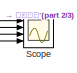
[diagram: root canvas - part 1/3, top left region]
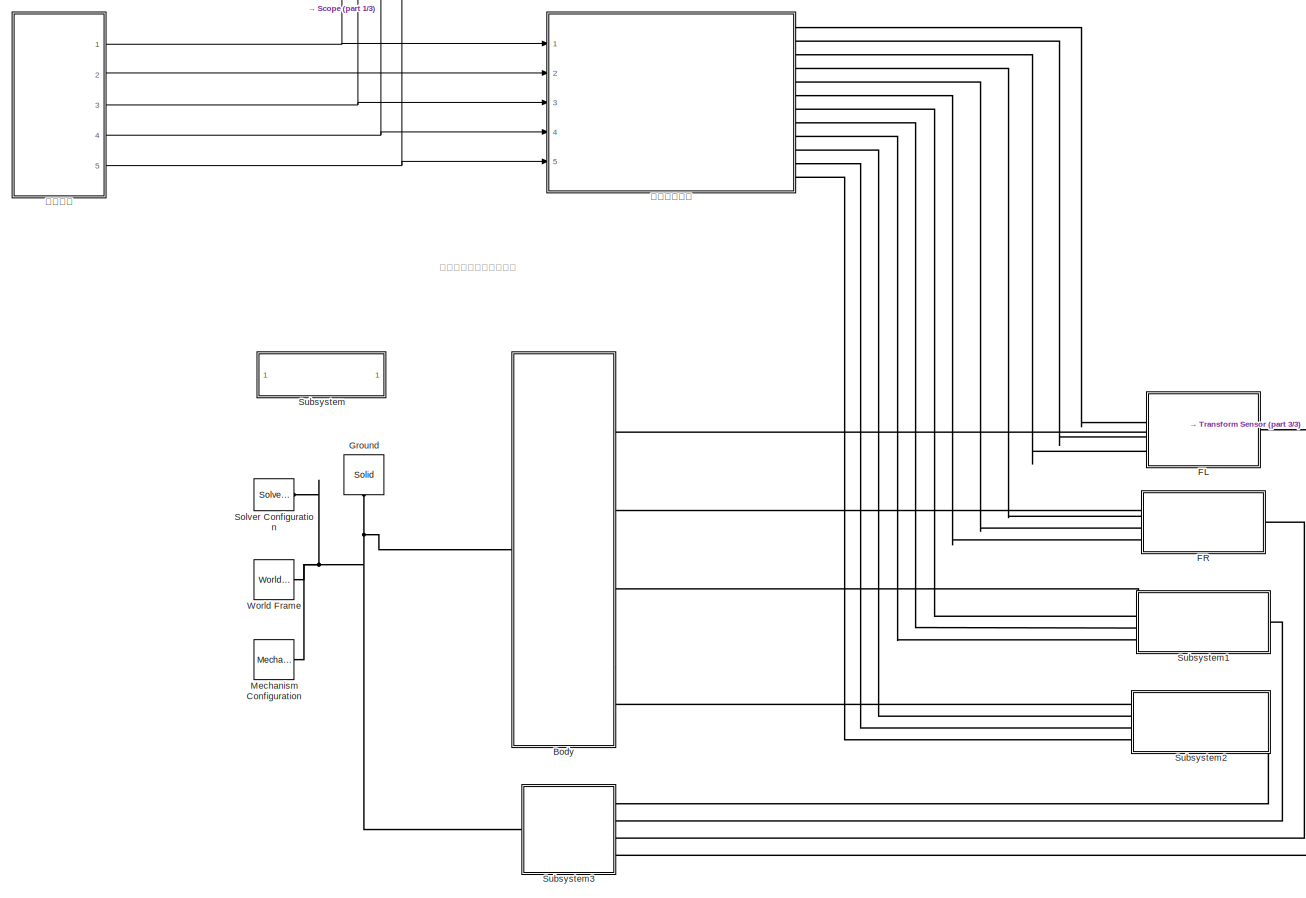
[diagram: root canvas - part 2/3, most of the canvas]
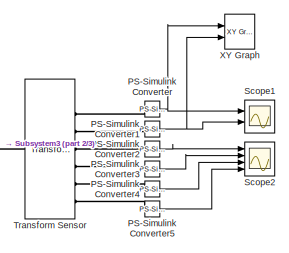
[diagram: root canvas - part 3/3, middle right region]
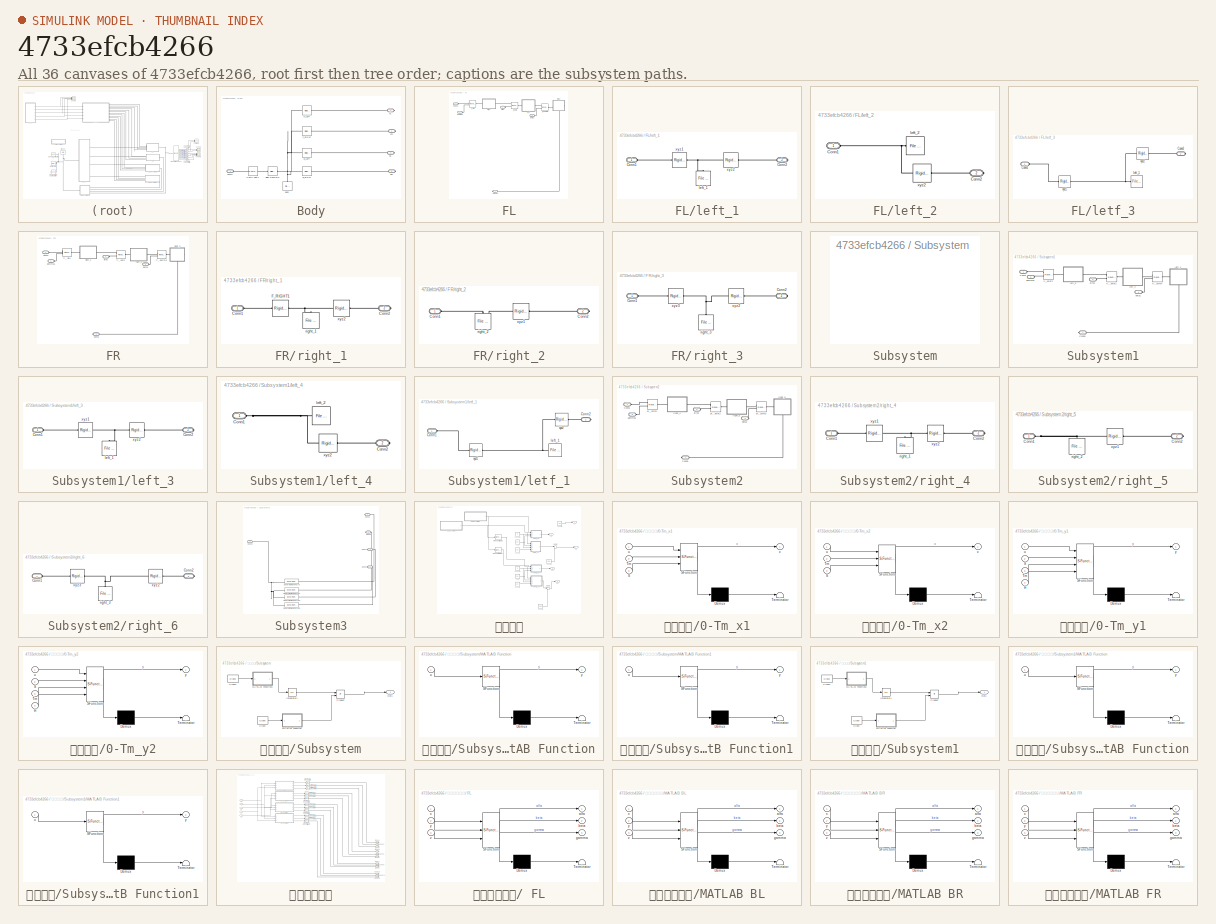
[diagram: thumbnail index - all 36 canvases of the model, root first then tree order]
MODEL slx_4733efcb4266
KIND model
CONFIG AbsTol = auto
CONFIG EnableMultiTasking = on
CONFIG FixedStep = auto
CONFIG MaxStep = auto
CONFIG MinStep = auto
CONFIG RelTol = 1e-3
CONFIG SampleTimeConstraint = Unconstrained
CONFIG Solver = VariableStepAuto
CONFIG SolverName = VariableStepAuto
CONFIG StartTime = 0.0
CONFIG StopTime = 10
BLOCK [SubSystem] Body
  Ports = [0, 0, 0, 0, 0, 1, 4]
  RequestExecContextInheritance = off
BLOCK [Reference] Body/6-DOF Joint1  REF=sm_lib/Joints/6-DOF Joint
  Ports = [0, 0, 0, 0, 0, 1, 1]
  SourceBlock = sm_lib/Joints/6-DOF Joint
  SourceProductBaseCode = MS
  SourceProductName = Simscape Multibody
  SourceType = 6-DOF Joint
BLOCK [PMIOPort] Body/BL
  Port = 3
  Side = Right
BLOCK [PMIOPort] Body/BR
  Port = 5
  Side = Right
BLOCK [Reference] Body/B_LEFT  REF=sm_lib/Frames and
Transforms/Rigid
Transform
  Ports = [0, 0, 0, 0, 0, 1, 1]
  SourceBlock = sm_lib/Frames and\nTransforms/Rigid\nTransform
  SourceProductBaseCode = MS
  SourceProductName = Simscape Multibody
  SourceType = Rigid\nTransform
BLOCK [Reference] Body/B_RIGHT  REF=sm_lib/Frames and
Transforms/Rigid
Transform
  Ports = [0, 0, 0, 0, 0, 1, 1]
  SourceBlock = sm_lib/Frames and\nTransforms/Rigid\nTransform
  SourceProductBaseCode = MS
  SourceProductName = Simscape Multibody
  SourceType = Rigid\nTransform
BLOCK [Reference] Body/Body  REF=sm_lib/Body Elements/File Solid
  Ports = [0, 0, 0, 0, 0, 0, 1]
  SourceBlock = sm_lib/Body Elements/File Solid
  SourceProductBaseCode = MS
  SourceProductName = Simscape Multibody
  SourceType = File Solid
BLOCK [PMIOPort] Body/Conn4
  Port = 4
  Side = Left
BLOCK [PMIOPort] Body/FL
  Side = Right
BLOCK [PMIOPort] Body/FR
  Port = 2
  Side = Right
BLOCK [Reference] Body/F_LEFT  REF=sm_lib/Frames and
Transforms/Rigid
Transform
  Ports = [0, 0, 0, 0, 0, 1, 1]
  SourceBlock = sm_lib/Frames and\nTransforms/Rigid\nTransform
  SourceProductBaseCode = MS
  SourceProductName = Simscape Multibody
  SourceType = Rigid\nTransform
BLOCK [Reference] Body/F_RIGHT  REF=sm_lib/Frames and
Transforms/Rigid
Transform
  Ports = [0, 0, 0, 0, 0, 1, 1]
  SourceBlock = sm_lib/Frames and\nTransforms/Rigid\nTransform
  SourceProductBaseCode = MS
  SourceProductName = Simscape Multibody
  SourceType = Rigid\nTransform
BLOCK [Reference] Body/Rigid Transform  REF=sm_lib/Frames and
Transforms/Rigid
Transform
  Ports = [0, 0, 0, 0, 0, 1, 1]
  SourceBlock = sm_lib/Frames and\nTransforms/Rigid\nTransform
  SourceProductBaseCode = MS
  SourceProductName = Simscape Multibody
  SourceType = Rigid\nTransform
BLOCK [SubSystem] FL
  Ports = [0, 0, 0, 0, 0, 4, 1]
  RequestExecContextInheritance = off
BLOCK [PMIOPort] FL/Conn1
  Side = Left
BLOCK [PMIOPort] FL/Conn5
  Port = 2
  Side = Right
BLOCK [PMIOPort] FL/alfa1
  Port = 3
  Side = Left
BLOCK [PMIOPort] FL/beta1
  Port = 4
  Side = Left
BLOCK [Reference] FL/fl_ beta  REF=sm_lib/Joints/Revolute Joint
  Ports = [0, 0, 0, 0, 0, 2, 1]
  SourceBlock = sm_lib/Joints/Revolute Joint
  SourceProductBaseCode = MS
  SourceProductName = Simscape Multibody
  SourceType = Revolute Joint
BLOCK [Reference] FL/fl_ gamma  REF=sm_lib/Joints/Revolute Joint
  Ports = [0, 0, 0, 0, 0, 2, 1]
  SourceBlock = sm_lib/Joints/Revolute Joint
  SourceProductBaseCode = MS
  SourceProductName = Simscape Multibody
  SourceType = Revolute Joint
BLOCK [Reference] FL/fl_alfa  REF=sm_lib/Joints/Revolute Joint
  Ports = [0, 0, 0, 0, 0, 2, 1]
  SourceBlock = sm_lib/Joints/Revolute Joint
  SourceProductBaseCode = MS
  SourceProductName = Simscape Multibody
  SourceType = Revolute Joint
BLOCK [PMIOPort] FL/gamma1
  Port = 5
  Side = Left
BLOCK [SubSystem] FL/left_1
  Ports = [0, 0, 0, 0, 0, 1, 1]
  RequestExecContextInheritance = off
BLOCK [PMIOPort] FL/left_1/Conn1
  Side = Left
BLOCK [PMIOPort] FL/left_1/Conn2
  Port = 2
  Side = Right
BLOCK [Reference] FL/left_1/left_1  REF=sm_lib/Body Elements/File Solid
  Ports = [0, 0, 0, 0, 0, 0, 1]
  SourceBlock = sm_lib/Body Elements/File Solid
  SourceProductBaseCode = MS
  SourceProductName = Simscape Multibody
  SourceType = File Solid
BLOCK [Reference] FL/left_1/xyz1  REF=sm_lib/Frames and
Transforms/Rigid
Transform
  Ports = [0, 0, 0, 0, 0, 1, 1]
  SourceBlock = sm_lib/Frames and\nTransforms/Rigid\nTransform
  SourceProductBaseCode = MS
  SourceProductName = Simscape Multibody
  SourceType = Rigid\nTransform
BLOCK [Reference] FL/left_1/xyz2  REF=sm_lib/Frames and
Transforms/Rigid
Transform
  Ports = [0, 0, 0, 0, 0, 1, 1]
  SourceBlock = sm_lib/Frames and\nTransforms/Rigid\nTransform
  SourceProductBaseCode = MS
  SourceProductName = Simscape Multibody
  SourceType = Rigid\nTransform
BLOCK [SubSystem] FL/left_2
  Ports = [0, 0, 0, 0, 0, 1, 1]
  RequestExecContextInheritance = off
BLOCK [PMIOPort] FL/left_2/Conn1
  Side = Left
BLOCK [PMIOPort] FL/left_2/Conn2
  Port = 2
  Side = Right
BLOCK [Reference] FL/left_2/left_2  REF=sm_lib/Body Elements/File Solid
  Ports = [0, 0, 0, 0, 0, 0, 1]
  SourceBlock = sm_lib/Body Elements/File Solid
  SourceProductBaseCode = MS
  SourceProductName = Simscape Multibody
  SourceType = File Solid
BLOCK [Reference] FL/left_2/xyz2  REF=sm_lib/Frames and
Transforms/Rigid
Transform
  Ports = [0, 0, 0, 0, 0, 1, 1]
  SourceBlock = sm_lib/Frames and\nTransforms/Rigid\nTransform
  SourceProductBaseCode = MS
  SourceProductName = Simscape Multibody
  SourceType = Rigid\nTransform
BLOCK [SubSystem] FL/letf_3
  Ports = [0, 0, 0, 0, 0, 1, 1]
  RequestExecContextInheritance = off
BLOCK [PMIOPort] FL/letf_3/Conn1
  Side = Left
BLOCK [PMIOPort] FL/letf_3/Conn2
  Port = 2
  Side = Right
BLOCK [Reference] FL/letf_3/left_1  REF=sm_lib/Body Elements/File Solid
  Ports = [0, 0, 0, 0, 0, 0, 1]
  SourceBlock = sm_lib/Body Elements/File Solid
  SourceProductBaseCode = MS
  SourceProductName = Simscape Multibody
  SourceType = File Solid
BLOCK [Reference] FL/letf_3/xyz1  REF=sm_lib/Frames and
Transforms/Rigid
Transform
  Ports = [0, 0, 0, 0, 0, 1, 1]
  SourceBlock = sm_lib/Frames and\nTransforms/Rigid\nTransform
  SourceProductBaseCode = MS
  SourceProductName = Simscape Multibody
  SourceType = Rigid\nTransform
BLOCK [Reference] FL/letf_3/xyz2  REF=sm_lib/Frames and
Transforms/Rigid
Transform
  Ports = [0, 0, 0, 0, 0, 1, 1]
  SourceBlock = sm_lib/Frames and\nTransforms/Rigid\nTransform
  SourceProductBaseCode = MS
  SourceProductName = Simscape Multibody
  SourceType = Rigid\nTransform
BLOCK [SubSystem] FR
  Ports = [0, 0, 0, 0, 0, 4, 1]
  RequestExecContextInheritance = off
BLOCK [PMIOPort] FR/Conn1
  Side = Left
BLOCK [PMIOPort] FR/Conn5
  Port = 2
  Side = Right
BLOCK [PMIOPort] FR/alfa1
  Port = 3
  Side = Left
BLOCK [PMIOPort] FR/beta1
  Port = 4
  Side = Left
BLOCK [Reference] FR/fr_ alfa  REF=sm_lib/Joints/Revolute Joint
  Ports = [0, 0, 0, 0, 0, 2, 1]
  SourceBlock = sm_lib/Joints/Revolute Joint
  SourceProductBaseCode = MS
  SourceProductName = Simscape Multibody
  SourceType = Revolute Joint
BLOCK [Reference] FR/fr_ beta  REF=sm_lib/Joints/Revolute Joint
  Ports = [0, 0, 0, 0, 0, 2, 1]
  SourceBlock = sm_lib/Joints/Revolute Joint
  SourceProductBaseCode = MS
  SourceProductName = Simscape Multibody
  SourceType = Revolute Joint
BLOCK [Reference] FR/fr_ gamma  REF=sm_lib/Joints/Revolute Joint
  Ports = [0, 0, 0, 0, 0, 2, 1]
  SourceBlock = sm_lib/Joints/Revolute Joint
  SourceProductBaseCode = MS
  SourceProductName = Simscape Multibody
  SourceType = Revolute Joint
BLOCK [PMIOPort] FR/gamma1
  Port = 5
  Side = Left
BLOCK [SubSystem] FR/right_1
  Ports = [0, 0, 0, 0, 0, 1, 1]
  RequestExecContextInheritance = off
BLOCK [PMIOPort] FR/right_1/Conn1
  Side = Left
BLOCK [PMIOPort] FR/right_1/Conn2
  Port = 2
  Side = Right
BLOCK [Reference] FR/right_1/F_RIGHT1  REF=sm_lib/Frames and
Transforms/Rigid
Transform
  Ports = [0, 0, 0, 0, 0, 1, 1]
  SourceBlock = sm_lib/Frames and\nTransforms/Rigid\nTransform
  SourceProductBaseCode = MS
  SourceProductName = Simscape Multibody
  SourceType = Rigid\nTransform
BLOCK [Reference] FR/right_1/right_1  REF=sm_lib/Body Elements/File Solid
  Ports = [0, 0, 0, 0, 0, 0, 1]
  SourceBlock = sm_lib/Body Elements/File Solid
  SourceProductBaseCode = MS
  SourceProductName = Simscape Multibody
  SourceType = File Solid
BLOCK [Reference] FR/right_1/xyz2  REF=sm_lib/Frames and
Transforms/Rigid
Transform
  Ports = [0, 0, 0, 0, 0, 1, 1]
  SourceBlock = sm_lib/Frames and\nTransforms/Rigid\nTransform
  SourceProductBaseCode = MS
  SourceProductName = Simscape Multibody
  SourceType = Rigid\nTransform
BLOCK [SubSystem] FR/right_2
  Ports = [0, 0, 0, 0, 0, 1, 1]
  RequestExecContextInheritance = off
BLOCK [PMIOPort] FR/right_2/Conn1
  Side = Left
BLOCK [PMIOPort] FR/right_2/Conn2
  Port = 2
  Side = Right
BLOCK [Reference] FR/right_2/right_2  REF=sm_lib/Body Elements/File Solid
  Ports = [0, 0, 0, 0, 0, 0, 1]
  SourceBlock = sm_lib/Body Elements/File Solid
  SourceProductBaseCode = MS
  SourceProductName = Simscape Multibody
  SourceType = File Solid
BLOCK [Reference] FR/right_2/xyz1  REF=sm_lib/Frames and
Transforms/Rigid
Transform
  Ports = [0, 0, 0, 0, 0, 1, 1]
  SourceBlock = sm_lib/Frames and\nTransforms/Rigid\nTransform
  SourceProductBaseCode = MS
  SourceProductName = Simscape Multibody
  SourceType = Rigid\nTransform
BLOCK [SubSystem] FR/right_3
  Ports = [0, 0, 0, 0, 0, 1, 1]
  RequestExecContextInheritance = off
BLOCK [PMIOPort] FR/right_3/Conn1
  Side = Left
BLOCK [PMIOPort] FR/right_3/Conn2
  Port = 2
  Side = Right
BLOCK [Reference] FR/right_3/right_3  REF=sm_lib/Body Elements/File Solid
  Ports = [0, 0, 0, 0, 0, 0, 1]
  SourceBlock = sm_lib/Body Elements/File Solid
  SourceProductBaseCode = MS
  SourceProductName = Simscape Multibody
  SourceType = File Solid
BLOCK [Reference] FR/right_3/xyz2  REF=sm_lib/Frames and
Transforms/Rigid
Transform
  Ports = [0, 0, 0, 0, 0, 1, 1]
  SourceBlock = sm_lib/Frames and\nTransforms/Rigid\nTransform
  SourceProductBaseCode = MS
  SourceProductName = Simscape Multibody
  SourceType = Rigid\nTransform
BLOCK [Reference] FR/right_3/xyz3  REF=sm_lib/Frames and
Transforms/Rigid
Transform
  Ports = [0, 0, 0, 0, 0, 1, 1]
  SourceBlock = sm_lib/Frames and\nTransforms/Rigid\nTransform
  SourceProductBaseCode = MS
  SourceProductName = Simscape Multibody
  SourceType = Rigid\nTransform
BLOCK [Reference] Ground  REF=sm_lib/Body Elements/Solid
  Ports = [0, 0, 0, 0, 0, 0, 1]
  SourceBlock = sm_lib/Body Elements/Solid
  SourceProductBaseCode = MS
  SourceProductName = Simscape Multibody
  SourceType = Solid
BLOCK [Reference] Mechanism Configuration  REF=sm_lib/Utilities/Mechanism
Configuration
  Ports = [0, 0, 0, 0, 0, 0, 1]
  SourceBlock = sm_lib/Utilities/Mechanism\nConfiguration
  SourceProductBaseCode = MS
  SourceProductName = Simscape Multibody
  SourceType = Mechanism\nConfiguration
BLOCK [Reference] PS-Simulink Converter  REF=nesl_utility/PS-Simulink
Converter
  Ports = [0, 1, 0, 0, 0, 1]
  SourceBlock = nesl_utility/PS-Simulink\nConverter
  SourceProductBaseCode = SS
  SourceProductName = Simscape
  SourceType = PS-Simulink\nConverter
BLOCK [Reference] PS-Simulink Converter1  REF=nesl_utility/PS-Simulink
Converter
  Ports = [0, 1, 0, 0, 0, 1]
  SourceBlock = nesl_utility/PS-Simulink\nConverter
  SourceProductBaseCode = SS
  SourceProductName = Simscape
  SourceType = PS-Simulink\nConverter
BLOCK [Reference] PS-Simulink Converter2  REF=nesl_utility/PS-Simulink
Converter
  Ports = [0, 1, 0, 0, 0, 1]
  SourceBlock = nesl_utility/PS-Simulink\nConverter
  SourceProductBaseCode = SS
  SourceProductName = Simscape
  SourceType = PS-Simulink\nConverter
BLOCK [Reference] PS-Simulink Converter3  REF=nesl_utility/PS-Simulink
Converter
  Ports = [0, 1, 0, 0, 0, 1]
  SourceBlock = nesl_utility/PS-Simulink\nConverter
  SourceProductBaseCode = SS
  SourceProductName = Simscape
  SourceType = PS-Simulink\nConverter
BLOCK [Reference] PS-Simulink Converter4  REF=nesl_utility/PS-Simulink
Converter
  Ports = [0, 1, 0, 0, 0, 1]
  SourceBlock = nesl_utility/PS-Simulink\nConverter
  SourceProductBaseCode = SS
  SourceProductName = Simscape
  SourceType = PS-Simulink\nConverter
BLOCK [Reference] PS-Simulink Converter5  REF=nesl_utility/PS-Simulink
Converter
  Ports = [0, 1, 0, 0, 0, 1]
  SourceBlock = nesl_utility/PS-Simulink\nConverter
  SourceProductBaseCode = SS
  SourceProductName = Simscape
  SourceType = PS-Simulink\nConverter
BLOCK [Scope] Scope
  Floating = off
  NumInputPorts = 4
  Ports = [4]
  ScopeSpecificationString = Simulink.scopes.TimeScopeBlockCfg('CurrentConfiguration', extmgr.ConfigurationSet(extmgr.Configuration('Core','General UI',true),extmgr.Configuration('Core','Source UI',true),extmgr.Configuration('Sources','WiredSimulink',true),extmgr.Configuration('Visuals','Time Domain',true,'SerializedDisplays',{struct('MinYLimReal','-23.75','MaxYLimReal','213.75','YLabelReal','','MinYLimMag','0.00000','MaxYLim...<+3384ch>
BLOCK [Scope] Scope1
  Floating = off
  NumInputPorts = 2
  Ports = [2]
  ScopeSpecificationString = Simulink.scopes.TimeScopeBlockCfg('CurrentConfiguration', extmgr.ConfigurationSet(extmgr.Configuration('Core','General UI',true),extmgr.Configuration('Core','Source UI',true),extmgr.Configuration('Sources','WiredSimulink',true,'DataLoggingVariableName','ScopeData1'),extmgr.Configuration('Visuals','Time Domain',true,'SerializedDisplays',{struct('MinYLimReal','-0.06821','MaxYLimReal','-0.06365','YLa...<+2014ch>
BLOCK [Scope] Scope2
  Floating = off
  NumInputPorts = 4
  Ports = [4]
  ScopeSpecificationString = Simulink.scopes.TimeScopeBlockCfg('CurrentConfiguration', extmgr.ConfigurationSet(extmgr.Configuration('Core','General UI',true),extmgr.Configuration('Core','Source UI',true),extmgr.Configuration('Sources','WiredSimulink',true,'DataLoggingVariableName','ScopeData2'),extmgr.Configuration('Visuals','Time Domain',true,'SerializedDisplays',{struct('MinYLimReal','-0.0089','MaxYLimReal','0.01207','YLabe...<+3437ch>
BLOCK [Reference] Solver Configuration  REF=nesl_utility/Solver
Configuration
  Ports = [0, 0, 0, 0, 0, 0, 1]
  SourceBlock = nesl_utility/Solver\nConfiguration
  SourceProductBaseCode = SS
  SourceProductName = Simscape
  SourceType = Solver\nConfiguration
BLOCK [SubSystem] Subsystem
  OpenFcn = open_system('sm_lib')
  Ports = []
  RequestExecContextInheritance = off
  ShowPortLabels = none
BLOCK [SubSystem] Subsystem1
  Ports = [0, 0, 0, 0, 0, 4, 1]
  RequestExecContextInheritance = off
BLOCK [PMIOPort] Subsystem1/Conn1
  Side = Left
BLOCK [PMIOPort] Subsystem1/Conn5
  Port = 2
  Side = Right
BLOCK [PMIOPort] Subsystem1/alfa1
  Port = 3
  Side = Left
BLOCK [PMIOPort] Subsystem1/beta1
  Port = 4
  Side = Left
BLOCK [Reference] Subsystem1/fl_ Joint1  REF=sm_lib/Joints/Revolute Joint
  Ports = [0, 0, 0, 0, 0, 2, 1]
  SourceBlock = sm_lib/Joints/Revolute Joint
  SourceProductBaseCode = MS
  SourceProductName = Simscape Multibody
  SourceType = Revolute Joint
BLOCK [Reference] Subsystem1/fl_ Joint4  REF=sm_lib/Joints/Revolute Joint
  Ports = [0, 0, 0, 0, 0, 2, 1]
  SourceBlock = sm_lib/Joints/Revolute Joint
  SourceProductBaseCode = MS
  SourceProductName = Simscape Multibody
  SourceType = Revolute Joint
BLOCK [Reference] Subsystem1/fl_Joint2  REF=sm_lib/Joints/Revolute Joint
  Ports = [0, 0, 0, 0, 0, 2, 1]
  SourceBlock = sm_lib/Joints/Revolute Joint
  SourceProductBaseCode = MS
  SourceProductName = Simscape Multibody
  SourceType = Revolute Joint
BLOCK [PMIOPort] Subsystem1/gamma1
  Port = 5
  Side = Left
BLOCK [SubSystem] Subsystem1/left_3
  Ports = [0, 0, 0, 0, 0, 1, 1]
  RequestExecContextInheritance = off
BLOCK [PMIOPort] Subsystem1/left_3/Conn1
  Side = Left
BLOCK [PMIOPort] Subsystem1/left_3/Conn2
  Port = 2
  Side = Right
BLOCK [Reference] Subsystem1/left_3/left_1  REF=sm_lib/Body Elements/File Solid
  Ports = [0, 0, 0, 0, 0, 0, 1]
  SourceBlock = sm_lib/Body Elements/File Solid
  SourceProductBaseCode = MS
  SourceProductName = Simscape Multibody
  SourceType = File Solid
BLOCK [Reference] Subsystem1/left_3/xyz1  REF=sm_lib/Frames and
Transforms/Rigid
Transform
  Ports = [0, 0, 0, 0, 0, 1, 1]
  SourceBlock = sm_lib/Frames and\nTransforms/Rigid\nTransform
  SourceProductBaseCode = MS
  SourceProductName = Simscape Multibody
  SourceType = Rigid\nTransform
BLOCK [Reference] Subsystem1/left_3/xyz2  REF=sm_lib/Frames and
Transforms/Rigid
Transform
  Ports = [0, 0, 0, 0, 0, 1, 1]
  SourceBlock = sm_lib/Frames and\nTransforms/Rigid\nTransform
  SourceProductBaseCode = MS
  SourceProductName = Simscape Multibody
  SourceType = Rigid\nTransform
BLOCK [SubSystem] Subsystem1/left_4
  Ports = [0, 0, 0, 0, 0, 1, 1]
  RequestExecContextInheritance = off
BLOCK [PMIOPort] Subsystem1/left_4/Conn1
  Side = Left
BLOCK [PMIOPort] Subsystem1/left_4/Conn2
  Port = 2
  Side = Right
BLOCK [Reference] Subsystem1/left_4/left_2  REF=sm_lib/Body Elements/File Solid
  Ports = [0, 0, 0, 0, 0, 0, 1]
  SourceBlock = sm_lib/Body Elements/File Solid
  SourceProductBaseCode = MS
  SourceProductName = Simscape Multibody
  SourceType = File Solid
BLOCK [Reference] Subsystem1/left_4/xyz2  REF=sm_lib/Frames and
Transforms/Rigid
Transform
  Ports = [0, 0, 0, 0, 0, 1, 1]
  SourceBlock = sm_lib/Frames and\nTransforms/Rigid\nTransform
  SourceProductBaseCode = MS
  SourceProductName = Simscape Multibody
  SourceType = Rigid\nTransform
BLOCK [SubSystem] Subsystem1/letf_1
  Ports = [0, 0, 0, 0, 0, 1, 1]
  RequestExecContextInheritance = off
BLOCK [PMIOPort] Subsystem1/letf_1/Conn1
  Side = Left
BLOCK [PMIOPort] Subsystem1/letf_1/Conn2
  Port = 2
  Side = Right
BLOCK [Reference] Subsystem1/letf_1/left_1  REF=sm_lib/Body Elements/File Solid
  Ports = [0, 0, 0, 0, 0, 0, 1]
  SourceBlock = sm_lib/Body Elements/File Solid
  SourceProductBaseCode = MS
  SourceProductName = Simscape Multibody
  SourceType = File Solid
BLOCK [Reference] Subsystem1/letf_1/xyz1  REF=sm_lib/Frames and
Transforms/Rigid
Transform
  Ports = [0, 0, 0, 0, 0, 1, 1]
  SourceBlock = sm_lib/Frames and\nTransforms/Rigid\nTransform
  SourceProductBaseCode = MS
  SourceProductName = Simscape Multibody
  SourceType = Rigid\nTransform
BLOCK [Reference] Subsystem1/letf_1/xyz2  REF=sm_lib/Frames and
Transforms/Rigid
Transform
  Ports = [0, 0, 0, 0, 0, 1, 1]
  SourceBlock = sm_lib/Frames and\nTransforms/Rigid\nTransform
  SourceProductBaseCode = MS
  SourceProductName = Simscape Multibody
  SourceType = Rigid\nTransform
BLOCK [SubSystem] Subsystem2
  Ports = [0, 0, 0, 0, 0, 4, 1]
  RequestExecContextInheritance = off
BLOCK [PMIOPort] Subsystem2/Conn1
  Side = Left
BLOCK [PMIOPort] Subsystem2/Conn5
  Port = 2
  Side = Right
BLOCK [PMIOPort] Subsystem2/alfa1
  Port = 3
  Side = Left
BLOCK [PMIOPort] Subsystem2/beta1
  Port = 4
  Side = Left
BLOCK [Reference] Subsystem2/br_ Joint1  REF=sm_lib/Joints/Revolute Joint
  Ports = [0, 0, 0, 0, 0, 2, 1]
  SourceBlock = sm_lib/Joints/Revolute Joint
  SourceProductBaseCode = MS
  SourceProductName = Simscape Multibody
  SourceType = Revolute Joint
BLOCK [Reference] Subsystem2/br_ Joint2  REF=sm_lib/Joints/Revolute Joint
  Ports = [0, 0, 0, 0, 0, 2, 1]
  SourceBlock = sm_lib/Joints/Revolute Joint
  SourceProductBaseCode = MS
  SourceProductName = Simscape Multibody
  SourceType = Revolute Joint
BLOCK [Reference] Subsystem2/br_ Joint3  REF=sm_lib/Joints/Revolute Joint
  Ports = [0, 0, 0, 0, 0, 2, 1]
  SourceBlock = sm_lib/Joints/Revolute Joint
  SourceProductBaseCode = MS
  SourceProductName = Simscape Multibody
  SourceType = Revolute Joint
BLOCK [PMIOPort] Subsystem2/gamma1
  Port = 5
  Side = Left
BLOCK [SubSystem] Subsystem2/right_4
  Ports = [0, 0, 0, 0, 0, 1, 1]
  RequestExecContextInheritance = off
BLOCK [PMIOPort] Subsystem2/right_4/Conn1
  Side = Left
BLOCK [PMIOPort] Subsystem2/right_4/Conn2
  Port = 2
  Side = Right
BLOCK [Reference] Subsystem2/right_4/right_1  REF=sm_lib/Body Elements/File Solid
  Ports = [0, 0, 0, 0, 0, 0, 1]
  SourceBlock = sm_lib/Body Elements/File Solid
  SourceProductBaseCode = MS
  SourceProductName = Simscape Multibody
  SourceType = File Solid
BLOCK [Reference] Subsystem2/right_4/xyz1  REF=sm_lib/Frames and
Transforms/Rigid
Transform
  Ports = [0, 0, 0, 0, 0, 1, 1]
  SourceBlock = sm_lib/Frames and\nTransforms/Rigid\nTransform
  SourceProductBaseCode = MS
  SourceProductName = Simscape Multibody
  SourceType = Rigid\nTransform
BLOCK [Reference] Subsystem2/right_4/xyz2  REF=sm_lib/Frames and
Transforms/Rigid
Transform
  Ports = [0, 0, 0, 0, 0, 1, 1]
  SourceBlock = sm_lib/Frames and\nTransforms/Rigid\nTransform
  SourceProductBaseCode = MS
  SourceProductName = Simscape Multibody
  SourceType = Rigid\nTransform
BLOCK [SubSystem] Subsystem2/right_5
  Ports = [0, 0, 0, 0, 0, 1, 1]
  RequestExecContextInheritance = off
BLOCK [PMIOPort] Subsystem2/right_5/Conn1
  Side = Left
BLOCK [PMIOPort] Subsystem2/right_5/Conn2
  Port = 2
  Side = Right
BLOCK [Reference] Subsystem2/right_5/right_2  REF=sm_lib/Body Elements/File Solid
  Ports = [0, 0, 0, 0, 0, 0, 1]
  SourceBlock = sm_lib/Body Elements/File Solid
  SourceProductBaseCode = MS
  SourceProductName = Simscape Multibody
  SourceType = File Solid
BLOCK [Reference] Subsystem2/right_5/xyz1  REF=sm_lib/Frames and
Transforms/Rigid
Transform
  Ports = [0, 0, 0, 0, 0, 1, 1]
  SourceBlock = sm_lib/Frames and\nTransforms/Rigid\nTransform
  SourceProductBaseCode = MS
  SourceProductName = Simscape Multibody
  SourceType = Rigid\nTransform
BLOCK [SubSystem] Subsystem2/right_6
  Ports = [0, 0, 0, 0, 0, 1, 1]
  RequestExecContextInheritance = off
BLOCK [PMIOPort] Subsystem2/right_6/Conn1
  Side = Left
BLOCK [PMIOPort] Subsystem2/right_6/Conn2
  Port = 2
  Side = Right
BLOCK [Reference] Subsystem2/right_6/right_3  REF=sm_lib/Body Elements/File Solid
  Ports = [0, 0, 0, 0, 0, 0, 1]
  SourceBlock = sm_lib/Body Elements/File Solid
  SourceProductBaseCode = MS
  SourceProductName = Simscape Multibody
  SourceType = File Solid
BLOCK [Reference] Subsystem2/right_6/xyz2  REF=sm_lib/Frames and
Transforms/Rigid
Transform
  Ports = [0, 0, 0, 0, 0, 1, 1]
  SourceBlock = sm_lib/Frames and\nTransforms/Rigid\nTransform
  SourceProductBaseCode = MS
  SourceProductName = Simscape Multibody
  SourceType = Rigid\nTransform
BLOCK [Reference] Subsystem2/right_6/xyz3  REF=sm_lib/Frames and
Transforms/Rigid
Transform
  Ports = [0, 0, 0, 0, 0, 1, 1]
  SourceBlock = sm_lib/Frames and\nTransforms/Rigid\nTransform
  SourceProductBaseCode = MS
  SourceProductName = Simscape Multibody
  SourceType = Rigid\nTransform
BLOCK [SubSystem] Subsystem3
  Ports = [0, 0, 0, 0, 0, 1, 4]
  RequestExecContextInheritance = off
BLOCK [PMIOPort] Subsystem3/Conn1
  Side = Right
BLOCK [PMIOPort] Subsystem3/Conn2
  Port = 2
  Side = Right
BLOCK [PMIOPort] Subsystem3/Conn3
  Port = 3
  Side = Left
BLOCK [PMIOPort] Subsystem3/Conn4
  Port = 4
  Side = Right
BLOCK [PMIOPort] Subsystem3/Conn5
  Port = 5
  Side = Right
BLOCK [Reference] Subsystem3/Sphere to Plane Force  REF=Contact_Forces_Lib/3D/Sphere to Plane Force
  Ports = [0, 1, 0, 0, 0, 1, 1]
  SourceBlock = Contact_Forces_Lib/3D/Sphere to Plane Force
  SourceProductName = Simscape Multibody Contact Forces Library
  SourceType = Sphere to Plane Force
BLOCK [Reference] Subsystem3/Sphere to Plane Force1  REF=Contact_Forces_Lib/3D/Sphere to Plane Force
  Ports = [0, 1, 0, 0, 0, 1, 1]
  SourceBlock = Contact_Forces_Lib/3D/Sphere to Plane Force
  SourceProductName = Simscape Multibody Contact Forces Library
  SourceType = Sphere to Plane Force
BLOCK [Reference] Subsystem3/Sphere to Plane Force2  REF=Contact_Forces_Lib/3D/Sphere to Plane Force
  Ports = [0, 1, 0, 0, 0, 1, 1]
  SourceBlock = Contact_Forces_Lib/3D/Sphere to Plane Force
  SourceProductName = Simscape Multibody Contact Forces Library
  SourceType = Sphere to Plane Force
BLOCK [Reference] Subsystem3/Sphere to Plane Force3  REF=Contact_Forces_Lib/3D/Sphere to Plane Force
  Ports = [0, 1, 0, 0, 0, 1, 1]
  SourceBlock = Contact_Forces_Lib/3D/Sphere to Plane Force
  SourceProductName = Simscape Multibody Contact Forces Library
  SourceType = Sphere to Plane Force
BLOCK [Reference] Transform Sensor  REF=sm_lib/Frames and
Transforms/Transform
Sensor
  Ports = [0, 0, 0, 0, 0, 1, 7]
  SourceBlock = sm_lib/Frames and\nTransforms/Transform\nSensor
  SourceProductBaseCode = MS
  SourceProductName = Simscape Multibody
  SourceType = Transform\nSensor
BLOCK [Reference] World Frame  REF=sm_lib/Frames and
Transforms/World Frame
  Ports = [0, 0, 0, 0, 0, 0, 1]
  SourceBlock = sm_lib/Frames and\nTransforms/World Frame
  SourceProductBaseCode = MS
  SourceProductName = Simscape Multibody
  SourceType = World Frame
BLOCK [Reference] XY Graph  REF=simulink/Sinks/XY Graph
  Ports = [2]
  SourceBlock = simulink/Sinks/XY Graph
  SourceProductBaseCode = SL
  SourceProductName = Simulink
  SourceType = XY scope.
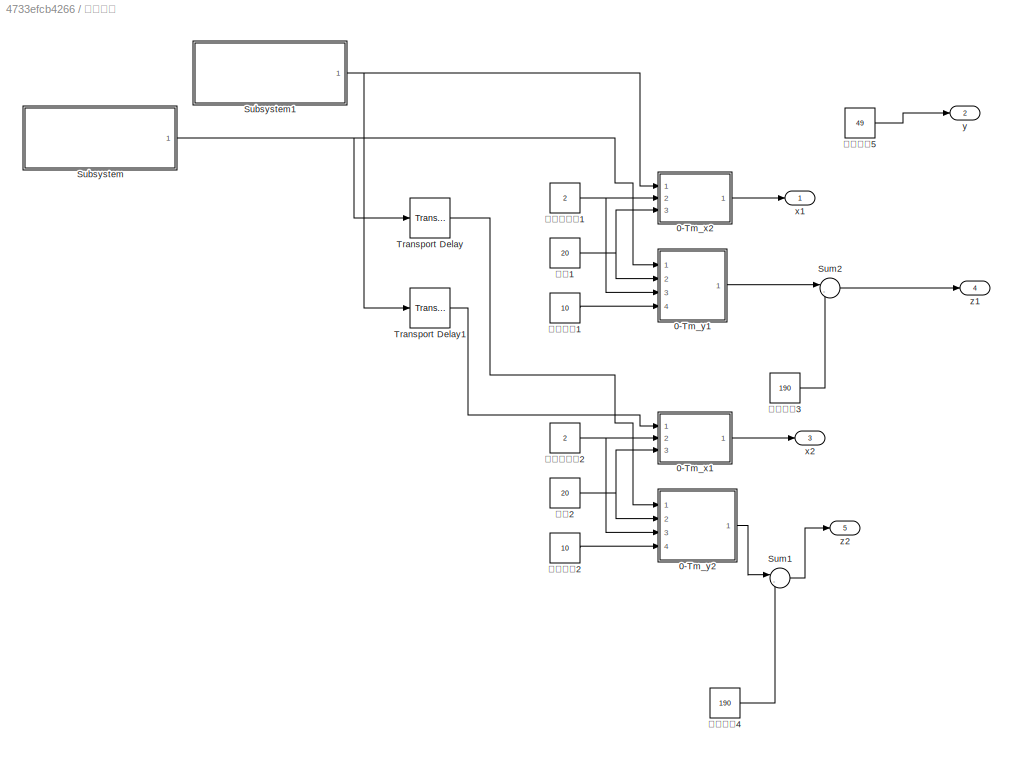
BLOCK [SubSystem] 步态规划
  Ports = [0, 5]
  RequestExecContextInheritance = off
BLOCK [SubSystem] 步态规划/0-Tm_x1
  ErrorFcn = Stateflow.Translate.translate
  PermitHierarchicalResolution = ExplicitOnly
  Ports = [3, 1]
  RequestExecContextInheritance = off
  SFBlockType = MATLAB Function
  TreatAsAtomicUnit = on
BLOCK [Demux] 步态规划/0-Tm_x1/ Demux 
  Outputs = 1
  Ports = [1, 1]
BLOCK [S-Function] 步态规划/0-Tm_x1/ SFunction 
  EnableBusSupport = on
  FunctionName = sf_sfun
  PortCounts = [3 2]
  Ports = [3, 2]
  SFcnIsStateOwnerBlock = off
  SFunctionDeploymentMode = off
  Tag = Stateflow S-Function dog 5
BLOCK [Terminator] 步态规划/0-Tm_x1/ Terminator 
BLOCK [Inport] 步态规划/0-Tm_x1/S
  IconDisplay = Port number
  Port = 3
BLOCK [Inport] 步态规划/0-Tm_x1/Tm
  IconDisplay = Port number
  Port = 2
BLOCK [Inport] 步态规划/0-Tm_x1/u
  IconDisplay = Port number
BLOCK [Outport] 步态规划/0-Tm_x1/x
  IconDisplay = Port number
BLOCK [SubSystem] 步态规划/0-Tm_x2
  ErrorFcn = Stateflow.Translate.translate
  PermitHierarchicalResolution = ExplicitOnly
  Ports = [3, 1]
  RequestExecContextInheritance = off
  SFBlockType = MATLAB Function
  TreatAsAtomicUnit = on
BLOCK [Demux] 步态规划/0-Tm_x2/ Demux 
  Outputs = 1
  Ports = [1, 1]
BLOCK [S-Function] 步态规划/0-Tm_x2/ SFunction 
  EnableBusSupport = on
  FunctionName = sf_sfun
  PortCounts = [3 2]
  Ports = [3, 2]
  SFcnIsStateOwnerBlock = off
  SFunctionDeploymentMode = off
  Tag = Stateflow S-Function dog 7
BLOCK [Terminator] 步态规划/0-Tm_x2/ Terminator 
BLOCK [Inport] 步态规划/0-Tm_x2/S
  IconDisplay = Port number
  Port = 3
BLOCK [Inport] 步态规划/0-Tm_x2/Tm
  IconDisplay = Port number
  Port = 2
BLOCK [Inport] 步态规划/0-Tm_x2/u
  IconDisplay = Port number
BLOCK [Outport] 步态规划/0-Tm_x2/x
  IconDisplay = Port number
BLOCK [SubSystem] 步态规划/0-Tm_y1
  ErrorFcn = Stateflow.Translate.translate
  PermitHierarchicalResolution = ExplicitOnly
  Ports = [4, 1]
  RequestExecContextInheritance = off
  SFBlockType = MATLAB Function
  TreatAsAtomicUnit = on
BLOCK [Demux] 步态规划/0-Tm_y1/ Demux 
  Outputs = 1
  Ports = [1, 1]
BLOCK [S-Function] 步态规划/0-Tm_y1/ SFunction 
  EnableBusSupport = on
  FunctionName = sf_sfun
  PortCounts = [4 2]
  Ports = [4, 2]
  SFcnIsStateOwnerBlock = off
  SFunctionDeploymentMode = off
  Tag = Stateflow S-Function dog 6
BLOCK [Terminator] 步态规划/0-Tm_y1/ Terminator 
BLOCK [Inport] 步态规划/0-Tm_y1/H
  IconDisplay = Port number
  Port = 4
BLOCK [Inport] 步态规划/0-Tm_y1/S
  IconDisplay = Port number
  Port = 2
BLOCK [Inport] 步态规划/0-Tm_y1/Tm
  IconDisplay = Port number
  Port = 3
BLOCK [Inport] 步态规划/0-Tm_y1/u
  IconDisplay = Port number
BLOCK [Outport] 步态规划/0-Tm_y1/y
  IconDisplay = Port number
BLOCK [SubSystem] 步态规划/0-Tm_y2
  ErrorFcn = Stateflow.Translate.translate
  PermitHierarchicalResolution = ExplicitOnly
  Ports = [4, 1]
  RequestExecContextInheritance = off
  SFBlockType = MATLAB Function
  TreatAsAtomicUnit = on
BLOCK [Demux] 步态规划/0-Tm_y2/ Demux 
  Outputs = 1
  Ports = [1, 1]
BLOCK [S-Function] 步态规划/0-Tm_y2/ SFunction 
  EnableBusSupport = on
  FunctionName = sf_sfun
  PortCounts = [4 2]
  Ports = [4, 2]
  SFcnIsStateOwnerBlock = off
  SFunctionDeploymentMode = off
  Tag = Stateflow S-Function dog 8
BLOCK [Terminator] 步态规划/0-Tm_y2/ Terminator 
BLOCK [Inport] 步态规划/0-Tm_y2/H
  IconDisplay = Port number
  Port = 4
BLOCK [Inport] 步态规划/0-Tm_y2/S
  IconDisplay = Port number
  Port = 2
BLOCK [Inport] 步态规划/0-Tm_y2/Tm
  IconDisplay = Port number
  Port = 3
BLOCK [Inport] 步态规划/0-Tm_y2/u
  IconDisplay = Port number
BLOCK [Outport] 步态规划/0-Tm_y2/y
  IconDisplay = Port number
BLOCK [SubSystem] 步态规划/Subsystem
  Ports = [0, 1]
  RequestExecContextInheritance = off
BLOCK [Reference] 步态规划/Subsystem/Clock  REF=simulink_extras/Flip Flops/Clock
  Ports = [0, 1]
  SourceBlock = simulink_extras/Flip Flops/Clock
  SourceProductBaseCode = SL
  SourceProductName = Simulink
  SourceType = Digital clock
BLOCK [Reference] 步态规划/Subsystem/Clock1  REF=simulink_extras/Flip Flops/Clock
  Ports = [0, 1]
  SourceBlock = simulink_extras/Flip Flops/Clock
  SourceProductBaseCode = SL
  SourceProductName = Simulink
  SourceType = Digital clock
BLOCK [Integrator] 步态规划/Subsystem/Integrator1
  Ports = [1, 1]
BLOCK [SubSystem] 步态规划/Subsystem/MATLAB Function
  ErrorFcn = Stateflow.Translate.translate
  PermitHierarchicalResolution = ExplicitOnly
  Ports = [1, 1]
  RequestExecContextInheritance = off
  SFBlockType = MATLAB Function
  TreatAsAtomicUnit = on
BLOCK [Demux] 步态规划/Subsystem/MATLAB Function/ Demux 
  Outputs = 1
  Ports = [1, 1]
BLOCK [S-Function] 步态规划/Subsystem/MATLAB Function/ SFunction 
  EnableBusSupport = on
  FunctionName = sf_sfun
  PortCounts = [1 2]
  Ports = [1, 2]
  SFcnIsStateOwnerBlock = off
  SFunctionDeploymentMode = off
  Tag = Stateflow S-Function dog 17
BLOCK [Terminator] 步态规划/Subsystem/MATLAB Function/ Terminator 
BLOCK [Inport] 步态规划/Subsystem/MATLAB Function/u
  IconDisplay = Port number
BLOCK [Outport] 步态规划/Subsystem/MATLAB Function/y
  IconDisplay = Port number
BLOCK [SubSystem] 步态规划/Subsystem/MATLAB Function1
  ErrorFcn = Stateflow.Translate.translate
  PermitHierarchicalResolution = ExplicitOnly
  Ports = [1, 1]
  RequestExecContextInheritance = off
  SFBlockType = MATLAB Function
  TreatAsAtomicUnit = on
BLOCK [Demux] 步态规划/Subsystem/MATLAB Function1/ Demux 
  Outputs = 1
  Ports = [1, 1]
BLOCK [S-Function] 步态规划/Subsystem/MATLAB Function1/ SFunction 
  EnableBusSupport = on
  FunctionName = sf_sfun
  PortCounts = [1 2]
  Ports = [1, 2]
  SFcnIsStateOwnerBlock = off
  SFunctionDeploymentMode = off
  Tag = Stateflow S-Function dog 18
BLOCK [Terminator] 步态规划/Subsystem/MATLAB Function1/ Terminator 
BLOCK [Inport] 步态规划/Subsystem/MATLAB Function1/u
  IconDisplay = Port number
BLOCK [Outport] 步态规划/Subsystem/MATLAB Function1/y
  IconDisplay = Port number
BLOCK [Outport] 步态规划/Subsystem/Out1
  IconDisplay = Port number
BLOCK [Product] 步态规划/Subsystem/Product
  InputSameDT = off
  OutDataTypeStr = Inherit: Inherit via internal rule
  Ports = [2, 1]
  RndMeth = Floor
  SaturateOnIntegerOverflow = off
BLOCK [SubSystem] 步态规划/Subsystem1
  Ports = [0, 1]
  RequestExecContextInheritance = off
BLOCK [Reference] 步态规划/Subsystem1/Clock  REF=simulink_extras/Flip Flops/Clock
  Ports = [0, 1]
  SourceBlock = simulink_extras/Flip Flops/Clock
  SourceProductBaseCode = SL
  SourceProductName = Simulink
  SourceType = Digital clock
BLOCK [Reference] 步态规划/Subsystem1/Clock1  REF=simulink_extras/Flip Flops/Clock
  Ports = [0, 1]
  SourceBlock = simulink_extras/Flip Flops/Clock
  SourceProductBaseCode = SL
  SourceProductName = Simulink
  SourceType = Digital clock
BLOCK [Integrator] 步态规划/Subsystem1/Integrator1
  Ports = [1, 1]
BLOCK [SubSystem] 步态规划/Subsystem1/MATLAB Function
  ErrorFcn = Stateflow.Translate.translate
  PermitHierarchicalResolution = ExplicitOnly
  Ports = [1, 1]
  RequestExecContextInheritance = off
  SFBlockType = MATLAB Function
  TreatAsAtomicUnit = on
BLOCK [Demux] 步态规划/Subsystem1/MATLAB Function/ Demux 
  Outputs = 1
  Ports = [1, 1]
BLOCK [S-Function] 步态规划/Subsystem1/MATLAB Function/ SFunction 
  EnableBusSupport = on
  FunctionName = sf_sfun
  PortCounts = [1 2]
  Ports = [1, 2]
  SFcnIsStateOwnerBlock = off
  SFunctionDeploymentMode = off
  Tag = Stateflow S-Function dog 19
BLOCK [Terminator] 步态规划/Subsystem1/MATLAB Function/ Terminator 
BLOCK [Inport] 步态规划/Subsystem1/MATLAB Function/u
  IconDisplay = Port number
BLOCK [Outport] 步态规划/Subsystem1/MATLAB Function/y
  IconDisplay = Port number
BLOCK [SubSystem] 步态规划/Subsystem1/MATLAB Function1
  ErrorFcn = Stateflow.Translate.translate
  PermitHierarchicalResolution = ExplicitOnly
  Ports = [1, 1]
  RequestExecContextInheritance = off
  SFBlockType = MATLAB Function
  TreatAsAtomicUnit = on
BLOCK [Demux] 步态规划/Subsystem1/MATLAB Function1/ Demux 
  Outputs = 1
  Ports = [1, 1]
BLOCK [S-Function] 步态规划/Subsystem1/MATLAB Function1/ SFunction 
  EnableBusSupport = on
  FunctionName = sf_sfun
  PortCounts = [1 2]
  Ports = [1, 2]
  SFcnIsStateOwnerBlock = off
  SFunctionDeploymentMode = off
  Tag = Stateflow S-Function dog 20
BLOCK [Terminator] 步态规划/Subsystem1/MATLAB Function1/ Terminator 
BLOCK [Inport] 步态规划/Subsystem1/MATLAB Function1/u
  IconDisplay = Port number
BLOCK [Outport] 步态规划/Subsystem1/MATLAB Function1/y
  IconDisplay = Port number
BLOCK [Outport] 步态规划/Subsystem1/Out1
  IconDisplay = Port number
BLOCK [Product] 步态规划/Subsystem1/Product
  InputSameDT = off
  OutDataTypeStr = Inherit: Inherit via internal rule
  Ports = [2, 1]
  RndMeth = Floor
  SaturateOnIntegerOverflow = off
BLOCK [Sum] 步态规划/Sum1
  IconShape = round
  InputSameDT = off
  Inputs = |-+
  OutDataTypeStr = Inherit: Inherit via internal rule
  Ports = [2, 1]
  SaturateOnIntegerOverflow = off
BLOCK [Sum] 步态规划/Sum2
  IconShape = round
  InputSameDT = off
  Inputs = |-+
  OutDataTypeStr = Inherit: Inherit via internal rule
  Ports = [2, 1]
  SaturateOnIntegerOverflow = off
BLOCK [TransportDelay] 步态规划/Transport Delay
  DelayTime = 2
  Ports = [1, 1]
BLOCK [TransportDelay] 步态规划/Transport Delay1
  DelayTime = 2
  Ports = [1, 1]
BLOCK [Outport] 步态规划/x1
  IconDisplay = Port number
BLOCK [Outport] 步态规划/x2
  IconDisplay = Port number
  Port = 3
BLOCK [Outport] 步态规划/y
  IconDisplay = Port number
  Port = 2
BLOCK [Outport] 步态规划/z1
  IconDisplay = Port number
  Port = 4
BLOCK [Outport] 步态规划/z2
  IconDisplay = Port number
  Port = 5
BLOCK [Constant] 步态规划/抬腿高度1
  Value = 10
BLOCK [Constant] 步态规划/抬腿高度2
  Value = 10
BLOCK [Constant] 步态规划/抬腿高度3
  Value = 190
BLOCK [Constant] 步态规划/抬腿高度4
  Value = 190
BLOCK [Constant] 步态规划/抬腿高度5
  Value = 49
BLOCK [Constant] 步态规划/摆动相周期1
  Value = 2
BLOCK [Constant] 步态规划/摆动相周期2
  Value = 2
BLOCK [Constant] 步态规划/步长1
  Value = 20
BLOCK [Constant] 步态规划/步长2
  Value = 20
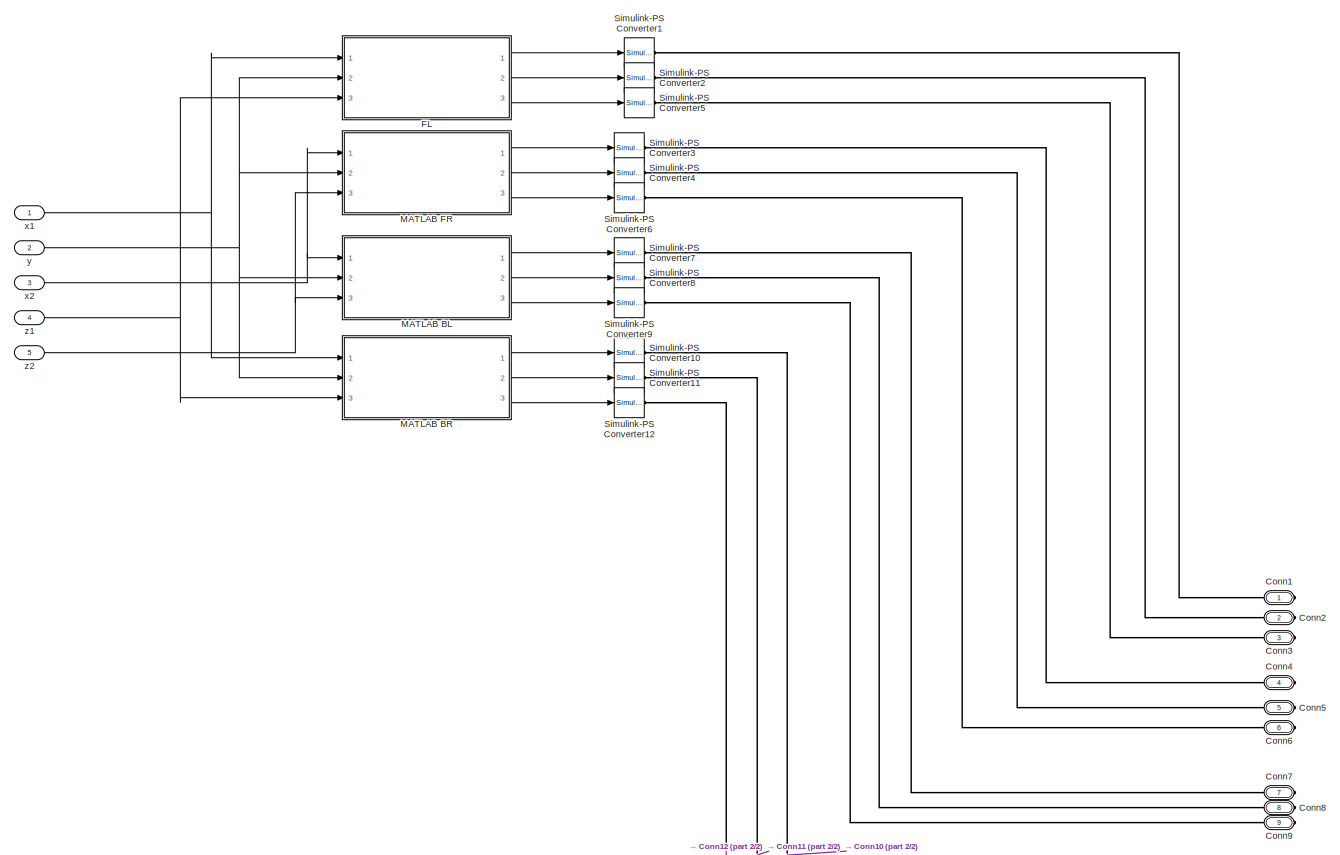
[diagram: 逆运动学解算 - part 1/2, most of the canvas]
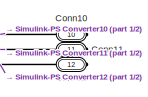
[diagram: 逆运动学解算 - part 2/2, bottom right region]
BLOCK [SubSystem] 逆运动学解算
  Ports = [5, 0, 0, 0, 0, 0, 12]
  RequestExecContextInheritance = off
BLOCK [SubSystem] 逆运动学解算/ FL
  ErrorFcn = Stateflow.Translate.translate
  PermitHierarchicalResolution = ExplicitOnly
  Ports = [3, 3]
  RequestExecContextInheritance = off
  SFBlockType = MATLAB Function
  TreatAsAtomicUnit = on
BLOCK [Demux] 逆运动学解算/ FL/ Demux 
  Outputs = 1
  Ports = [1, 1]
BLOCK [S-Function] 逆运动学解算/ FL/ SFunction 
  EnableBusSupport = on
  FunctionName = sf_sfun
  PortCounts = [3 4]
  Ports = [3, 4]
  SFcnIsStateOwnerBlock = off
  SFunctionDeploymentMode = off
  Tag = Stateflow S-Function dog 2
BLOCK [Terminator] 逆运动学解算/ FL/ Terminator 
BLOCK [Outport] 逆运动学解算/ FL/alfa
  IconDisplay = Port number
BLOCK [Outport] 逆运动学解算/ FL/beta
  IconDisplay = Port number
  Port = 2
BLOCK [Outport] 逆运动学解算/ FL/gamma
  IconDisplay = Port number
  Port = 3
BLOCK [Inport] 逆运动学解算/ FL/x
  IconDisplay = Port number
BLOCK [Inport] 逆运动学解算/ FL/y
  IconDisplay = Port number
  Port = 2
BLOCK [Inport] 逆运动学解算/ FL/z
  IconDisplay = Port number
  Port = 3
BLOCK [PMIOPort] 逆运动学解算/Conn1
  Side = Right
BLOCK [PMIOPort] 逆运动学解算/Conn10
  Port = 10
  Side = Right
BLOCK [PMIOPort] 逆运动学解算/Conn11
  Port = 11
  Side = Right
BLOCK [PMIOPort] 逆运动学解算/Conn12
  Port = 12
  Side = Right
BLOCK [PMIOPort] 逆运动学解算/Conn2
  Port = 2
  Side = Right
BLOCK [PMIOPort] 逆运动学解算/Conn3
  Port = 3
  Side = Right
BLOCK [PMIOPort] 逆运动学解算/Conn4
  Port = 4
  Side = Right
BLOCK [PMIOPort] 逆运动学解算/Conn5
  Port = 5
  Side = Right
BLOCK [PMIOPort] 逆运动学解算/Conn6
  Port = 6
  Side = Right
BLOCK [PMIOPort] 逆运动学解算/Conn7
  Port = 7
  Side = Right
BLOCK [PMIOPort] 逆运动学解算/Conn8
  Port = 8
  Side = Right
BLOCK [PMIOPort] 逆运动学解算/Conn9
  Port = 9
  Side = Right
BLOCK [SubSystem] 逆运动学解算/MATLAB BL
  ErrorFcn = Stateflow.Translate.translate
  PermitHierarchicalResolution = ExplicitOnly
  Ports = [3, 3]
  RequestExecContextInheritance = off
  SFBlockType = MATLAB Function
  TreatAsAtomicUnit = on
BLOCK [Demux] 逆运动学解算/MATLAB BL/ Demux 
  Outputs = 1
  Ports = [1, 1]
BLOCK [S-Function] 逆运动学解算/MATLAB BL/ SFunction 
  EnableBusSupport = on
  FunctionName = sf_sfun
  PortCounts = [3 4]
  Ports = [3, 4]
  SFcnIsStateOwnerBlock = off
  SFunctionDeploymentMode = off
  Tag = Stateflow S-Function dog 3
BLOCK [Terminator] 逆运动学解算/MATLAB BL/ Terminator 
BLOCK [Outport] 逆运动学解算/MATLAB BL/alfa
  IconDisplay = Port number
BLOCK [Outport] 逆运动学解算/MATLAB BL/beta
  IconDisplay = Port number
  Port = 2
BLOCK [Outport] 逆运动学解算/MATLAB BL/gamma
  IconDisplay = Port number
  Port = 3
BLOCK [Inport] 逆运动学解算/MATLAB BL/x
  IconDisplay = Port number
BLOCK [Inport] 逆运动学解算/MATLAB BL/y
  IconDisplay = Port number
  Port = 2
BLOCK [Inport] 逆运动学解算/MATLAB BL/z
  IconDisplay = Port number
  Port = 3
BLOCK [SubSystem] 逆运动学解算/MATLAB BR
  ErrorFcn = Stateflow.Translate.translate
  PermitHierarchicalResolution = ExplicitOnly
  Ports = [3, 3]
  RequestExecContextInheritance = off
  SFBlockType = MATLAB Function
  TreatAsAtomicUnit = on
BLOCK [Demux] 逆运动学解算/MATLAB BR/ Demux 
  Outputs = 1
  Ports = [1, 1]
BLOCK [S-Function] 逆运动学解算/MATLAB BR/ SFunction 
  EnableBusSupport = on
  FunctionName = sf_sfun
  PortCounts = [3 4]
  Ports = [3, 4]
  SFcnIsStateOwnerBlock = off
  SFunctionDeploymentMode = off
  Tag = Stateflow S-Function dog 4
BLOCK [Terminator] 逆运动学解算/MATLAB BR/ Terminator 
BLOCK [Outport] 逆运动学解算/MATLAB BR/alfa
  IconDisplay = Port number
BLOCK [Outport] 逆运动学解算/MATLAB BR/beta
  IconDisplay = Port number
  Port = 2
BLOCK [Outport] 逆运动学解算/MATLAB BR/gamma
  IconDisplay = Port number
  Port = 3
BLOCK [Inport] 逆运动学解算/MATLAB BR/x
  IconDisplay = Port number
BLOCK [Inport] 逆运动学解算/MATLAB BR/y
  IconDisplay = Port number
  Port = 2
BLOCK [Inport] 逆运动学解算/MATLAB BR/z
  IconDisplay = Port number
  Port = 3
BLOCK [SubSystem] 逆运动学解算/MATLAB FR
  ErrorFcn = Stateflow.Translate.translate
  PermitHierarchicalResolution = ExplicitOnly
  Ports = [3, 3]
  RequestExecContextInheritance = off
  SFBlockType = MATLAB Function
  TreatAsAtomicUnit = on
BLOCK [Demux] 逆运动学解算/MATLAB FR/ Demux 
  Outputs = 1
  Ports = [1, 1]
BLOCK [S-Function] 逆运动学解算/MATLAB FR/ SFunction 
  EnableBusSupport = on
  FunctionName = sf_sfun
  PortCounts = [3 4]
  Ports = [3, 4]
  SFcnIsStateOwnerBlock = off
  SFunctionDeploymentMode = off
  Tag = Stateflow S-Function dog 1
BLOCK [Terminator] 逆运动学解算/MATLAB FR/ Terminator 
BLOCK [Outport] 逆运动学解算/MATLAB FR/alfa
  IconDisplay = Port number
BLOCK [Outport] 逆运动学解算/MATLAB FR/beta
  IconDisplay = Port number
  Port = 2
BLOCK [Outport] 逆运动学解算/MATLAB FR/gamma
  IconDisplay = Port number
  Port = 3
BLOCK [Inport] 逆运动学解算/MATLAB FR/x
  IconDisplay = Port number
BLOCK [Inport] 逆运动学解算/MATLAB FR/y
  IconDisplay = Port number
  Port = 2
BLOCK [Inport] 逆运动学解算/MATLAB FR/z
  IconDisplay = Port number
  Port = 3
BLOCK [Reference] 逆运动学解算/Simulink-PS Converter1  REF=nesl_utility/Simulink-PS
Converter
  Ports = [1, 0, 0, 0, 0, 0, 1]
  SourceBlock = nesl_utility/Simulink-PS\nConverter
  SourceProductBaseCode = SS
  SourceProductName = Simscape
  SourceType = Simulink-PS\nConverter
BLOCK [Reference] 逆运动学解算/Simulink-PS Converter10  REF=nesl_utility/Simulink-PS
Converter
  Ports = [1, 0, 0, 0, 0, 0, 1]
  SourceBlock = nesl_utility/Simulink-PS\nConverter
  SourceProductBaseCode = SS
  SourceProductName = Simscape
  SourceType = Simulink-PS\nConverter
BLOCK [Reference] 逆运动学解算/Simulink-PS Converter11  REF=nesl_utility/Simulink-PS
Converter
  Ports = [1, 0, 0, 0, 0, 0, 1]
  SourceBlock = nesl_utility/Simulink-PS\nConverter
  SourceProductBaseCode = SS
  SourceProductName = Simscape
  SourceType = Simulink-PS\nConverter
BLOCK [Reference] 逆运动学解算/Simulink-PS Converter12  REF=nesl_utility/Simulink-PS
Converter
  Ports = [1, 0, 0, 0, 0, 0, 1]
  SourceBlock = nesl_utility/Simulink-PS\nConverter
  SourceProductBaseCode = SS
  SourceProductName = Simscape
  SourceType = Simulink-PS\nConverter
BLOCK [Reference] 逆运动学解算/Simulink-PS Converter2  REF=nesl_utility/Simulink-PS
Converter
  Ports = [1, 0, 0, 0, 0, 0, 1]
  SourceBlock = nesl_utility/Simulink-PS\nConverter
  SourceProductBaseCode = SS
  SourceProductName = Simscape
  SourceType = Simulink-PS\nConverter
BLOCK [Reference] 逆运动学解算/Simulink-PS Converter3  REF=nesl_utility/Simulink-PS
Converter
  Ports = [1, 0, 0, 0, 0, 0, 1]
  SourceBlock = nesl_utility/Simulink-PS\nConverter
  SourceProductBaseCode = SS
  SourceProductName = Simscape
  SourceType = Simulink-PS\nConverter
BLOCK [Reference] 逆运动学解算/Simulink-PS Converter4  REF=nesl_utility/Simulink-PS
Converter
  Ports = [1, 0, 0, 0, 0, 0, 1]
  SourceBlock = nesl_utility/Simulink-PS\nConverter
  SourceProductBaseCode = SS
  SourceProductName = Simscape
  SourceType = Simulink-PS\nConverter
BLOCK [Reference] 逆运动学解算/Simulink-PS Converter5  REF=nesl_utility/Simulink-PS
Converter
  Ports = [1, 0, 0, 0, 0, 0, 1]
  SourceBlock = nesl_utility/Simulink-PS\nConverter
  SourceProductBaseCode = SS
  SourceProductName = Simscape
  SourceType = Simulink-PS\nConverter
BLOCK [Reference] 逆运动学解算/Simulink-PS Converter6  REF=nesl_utility/Simulink-PS
Converter
  Ports = [1, 0, 0, 0, 0, 0, 1]
  SourceBlock = nesl_utility/Simulink-PS\nConverter
  SourceProductBaseCode = SS
  SourceProductName = Simscape
  SourceType = Simulink-PS\nConverter
BLOCK [Reference] 逆运动学解算/Simulink-PS Converter7  REF=nesl_utility/Simulink-PS
Converter
  Ports = [1, 0, 0, 0, 0, 0, 1]
  SourceBlock = nesl_utility/Simulink-PS\nConverter
  SourceProductBaseCode = SS
  SourceProductName = Simscape
  SourceType = Simulink-PS\nConverter
BLOCK [Reference] 逆运动学解算/Simulink-PS Converter8  REF=nesl_utility/Simulink-PS
Converter
  Ports = [1, 0, 0, 0, 0, 0, 1]
  SourceBlock = nesl_utility/Simulink-PS\nConverter
  SourceProductBaseCode = SS
  SourceProductName = Simscape
  SourceType = Simulink-PS\nConverter
BLOCK [Reference] 逆运动学解算/Simulink-PS Converter9  REF=nesl_utility/Simulink-PS
Converter
  Ports = [1, 0, 0, 0, 0, 0, 1]
  SourceBlock = nesl_utility/Simulink-PS\nConverter
  SourceProductBaseCode = SS
  SourceProductName = Simscape
  SourceType = Simulink-PS\nConverter
BLOCK [Inport] 逆运动学解算/x1
  IconDisplay = Port number
BLOCK [Inport] 逆运动学解算/x2
  IconDisplay = Port number
  Port = 3
BLOCK [Inport] 逆运动学解算/y
  IconDisplay = Port number
  Port = 2
BLOCK [Inport] 逆运动学解算/z1
  IconDisplay = Port number
  Port = 4
BLOCK [Inport] 逆运动学解算/z2
  IconDisplay = Port number
  Port = 5
ANNOTATION (root): 四足机器人逆运动学仿真
NET PS-Simulink Converter1:1 -> Scope1:2, XY Graph:2
LINE PS-Simulink Converter2:1 -> Scope2:1
LINE PS-Simulink Converter3:1 -> Scope2:2
LINE PS-Simulink Converter4:1 -> Scope2:3
LINE PS-Simulink Converter5:1 -> Scope2:4
NET PS-Simulink Converter:1 -> Scope1:1, XY Graph:1
LINE 步态规划/0-Tm_x1:1 -> 步态规划/x2:1
LINE 步态规划/0-Tm_x2:1 -> 步态规划/x1:1
LINE 步态规划/0-Tm_y1:1 -> 步态规划/Sum2:1
LINE 步态规划/0-Tm_y2:1 -> 步态规划/Sum1:1
LINE 步态规划/Subsystem/Clock1:1 -> 步态规划/Subsystem/MATLAB Function1:1
LINE 步态规划/Subsystem/Clock:1 -> 步态规划/Subsystem/MATLAB Function:1
LINE 步态规划/Subsystem/Integrator1:1 -> 步态规划/Subsystem/Product:1
LINE 步态规划/Subsystem/MATLAB Function1:1 -> 步态规划/Subsystem/Integrator1:1
LINE 步态规划/Subsystem/MATLAB Function:1 -> 步态规划/Subsystem/Product:2
LINE 步态规划/Subsystem/Product:1 -> 步态规划/Subsystem/Out1:1
LINE 步态规划/Subsystem1/Clock1:1 -> 步态规划/Subsystem1/MATLAB Function1:1
LINE 步态规划/Subsystem1/Clock:1 -> 步态规划/Subsystem1/MATLAB Function:1
LINE 步态规划/Subsystem1/Integrator1:1 -> 步态规划/Subsystem1/Product:1
LINE 步态规划/Subsystem1/MATLAB Function1:1 -> 步态规划/Subsystem1/Integrator1:1
LINE 步态规划/Subsystem1/MATLAB Function:1 -> 步态规划/Subsystem1/Product:2
LINE 步态规划/Subsystem1/Product:1 -> 步态规划/Subsystem1/Out1:1
NET 步态规划/Subsystem1:1 -> 步态规划/0-Tm_x2:1, 步态规划/Transport Delay1:1
NET 步态规划/Subsystem:1 -> 步态规划/0-Tm_y1:1, 步态规划/Transport Delay:1
LINE 步态规划/Sum1:1 -> 步态规划/z2:1
LINE 步态规划/Sum2:1 -> 步态规划/z1:1
LINE 步态规划/Transport Delay1:1 -> 步态规划/0-Tm_x1:1
LINE 步态规划/Transport Delay:1 -> 步态规划/0-Tm_y2:1
LINE 步态规划/抬腿高度1:1 -> 步态规划/0-Tm_y1:4
LINE 步态规划/抬腿高度2:1 -> 步态规划/0-Tm_y2:4
LINE 步态规划/抬腿高度3:1 -> 步态规划/Sum2:2
LINE 步态规划/抬腿高度4:1 -> 步态规划/Sum1:2
LINE 步态规划/抬腿高度5:1 -> 步态规划/y:1
NET 步态规划/摆动相周期1:1 -> 步态规划/0-Tm_x2:2, 步态规划/0-Tm_y1:3
NET 步态规划/摆动相周期2:1 -> 步态规划/0-Tm_x1:2, 步态规划/0-Tm_y2:3
NET 步态规划/步长1:1 -> 步态规划/0-Tm_x2:3, 步态规划/0-Tm_y1:2
NET 步态规划/步长2:1 -> 步态规划/0-Tm_x1:3, 步态规划/0-Tm_y2:2
NET 步态规划:1 -> Scope:1, 逆运动学解算:1
LINE 步态规划:2 -> 逆运动学解算:2
NET 步态规划:3 -> Scope:2, 逆运动学解算:3
NET 步态规划:4 -> Scope:3, 逆运动学解算:4
NET 步态规划:5 -> Scope:4, 逆运动学解算:5
LINE 逆运动学解算/ FL:1 -> 逆运动学解算/Simulink-PS Converter1:1
LINE 逆运动学解算/ FL:2 -> 逆运动学解算/Simulink-PS Converter2:1
LINE 逆运动学解算/ FL:3 -> 逆运动学解算/Simulink-PS Converter5:1
LINE 逆运动学解算/MATLAB BL:1 -> 逆运动学解算/Simulink-PS Converter7:1
LINE 逆运动学解算/MATLAB BL:2 -> 逆运动学解算/Simulink-PS Converter8:1
LINE 逆运动学解算/MATLAB BL:3 -> 逆运动学解算/Simulink-PS Converter9:1
LINE 逆运动学解算/MATLAB BR:1 -> 逆运动学解算/Simulink-PS Converter10:1
LINE 逆运动学解算/MATLAB BR:2 -> 逆运动学解算/Simulink-PS Converter11:1
LINE 逆运动学解算/MATLAB BR:3 -> 逆运动学解算/Simulink-PS Converter12:1
LINE 逆运动学解算/MATLAB FR:1 -> 逆运动学解算/Simulink-PS Converter3:1
LINE 逆运动学解算/MATLAB FR:2 -> 逆运动学解算/Simulink-PS Converter4:1
LINE 逆运动学解算/MATLAB FR:3 -> 逆运动学解算/Simulink-PS Converter6:1
NET 逆运动学解算/x1:1 -> 逆运动学解算/ FL:1, 逆运动学解算/MATLAB BR:1
NET 逆运动学解算/x2:1 -> 逆运动学解算/MATLAB BL:1, 逆运动学解算/MATLAB FR:1
NET 逆运动学解算/y:1 -> 逆运动学解算/ FL:2, 逆运动学解算/MATLAB BL:2, 逆运动学解算/MATLAB BR:2, 逆运动学解算/MATLAB FR:2
NET 逆运动学解算/z1:1 -> 逆运动学解算/ FL:3, 逆运动学解算/MATLAB BR:3
NET 逆运动学解算/z2:1 -> 逆运动学解算/MATLAB BL:3, 逆运动学解算/MATLAB FR:3
PLINE Body/6-DOF Joint1:LConn1 -- Body/Conn4:RConn1
PLINE Body/6-DOF Joint1:RConn1 -- Body/Rigid Transform:LConn1
PLINE Body/BL:RConn1 -- Body/B_LEFT:RConn1
PLINE Body/BR:RConn1 -- Body/B_RIGHT:RConn1
PNET net1: Body/B_LEFT:LConn1 -- Body/B_RIGHT:LConn1 -- Body/Body:RConn1 -- Body/F_LEFT:LConn1 -- Body/F_RIGHT:LConn1 -- Body/Rigid Transform:RConn1
PLINE Body/FL:RConn1 -- Body/F_LEFT:RConn1
PLINE Body/FR:RConn1 -- Body/F_RIGHT:RConn1
PNET net2: Body:LConn1 -- Ground:RConn1 -- Mechanism Configuration:RConn1 -- Solver Configuration:RConn1 -- Subsystem3:LConn1 -- World Frame:RConn1
PLINE Body:RConn1 -- FL:LConn1
PLINE Body:RConn2 -- FR:LConn1
PLINE Body:RConn3 -- Subsystem1:LConn1
PLINE Body:RConn4 -- Subsystem2:LConn1
PLINE FL/Conn1:RConn1 -- FL/fl_alfa:LConn1
PLINE FL/Conn5:RConn1 -- FL/letf_3:RConn1
PLINE FL/alfa1:RConn1 -- FL/fl_ beta:LConn2
PLINE FL/beta1:RConn1 -- FL/fl_ gamma:LConn2
PLINE FL/fl_ beta:LConn1 -- FL/left_1:RConn1
PLINE FL/fl_ beta:RConn1 -- FL/left_2:LConn1
PLINE FL/fl_ gamma:LConn1 -- FL/left_2:RConn1
PLINE FL/fl_ gamma:RConn1 -- FL/letf_3:LConn1
PLINE FL/fl_alfa:LConn2 -- FL/gamma1:RConn1
PLINE FL/fl_alfa:RConn1 -- FL/left_1:LConn1
PLINE FL/left_1/Conn1:RConn1 -- FL/left_1/xyz1:RConn1
PLINE FL/left_1/Conn2:RConn1 -- FL/left_1/xyz2:RConn1
PNET net3: FL/left_1/left_1:RConn1 -- FL/left_1/xyz1:LConn1 -- FL/left_1/xyz2:LConn1
PNET net4: FL/left_2/Conn1:RConn1 -- FL/left_2/left_2:RConn1 -- FL/left_2/xyz2:LConn1
PLINE FL/left_2/Conn2:RConn1 -- FL/left_2/xyz2:RConn1
PLINE FL/letf_3/Conn1:RConn1 -- FL/letf_3/xyz1:LConn1
PLINE FL/letf_3/Conn2:RConn1 -- FL/letf_3/xyz2:RConn1
PNET net5: FL/letf_3/left_1:RConn1 -- FL/letf_3/xyz1:RConn1 -- FL/letf_3/xyz2:LConn1
PLINE FL:LConn2 -- 逆运动学解算:RConn1
PLINE FL:LConn3 -- 逆运动学解算:RConn2
PLINE FL:LConn4 -- 逆运动学解算:RConn3
PNET net6: FL:RConn1 -- Subsystem3:RConn4 -- Transform Sensor:LConn1
PLINE FR/Conn1:RConn1 -- FR/fr_ alfa:LConn1
PLINE FR/Conn5:RConn1 -- FR/right_3:RConn1
PLINE FR/alfa1:RConn1 -- FR/fr_ beta:LConn2
PLINE FR/beta1:RConn1 -- FR/fr_ gamma:LConn2
PLINE FR/fr_ alfa:LConn2 -- FR/gamma1:RConn1
PLINE FR/fr_ alfa:RConn1 -- FR/right_1:LConn1
PLINE FR/fr_ beta:LConn1 -- FR/right_1:RConn1
PLINE FR/fr_ beta:RConn1 -- FR/right_2:LConn1
PLINE FR/fr_ gamma:LConn1 -- FR/right_2:RConn1
PLINE FR/fr_ gamma:RConn1 -- FR/right_3:LConn1
PLINE FR/right_1/Conn1:RConn1 -- FR/right_1/F_RIGHT1:RConn1
PLINE FR/right_1/Conn2:RConn1 -- FR/right_1/xyz2:RConn1
PNET net7: FR/right_1/F_RIGHT1:LConn1 -- FR/right_1/right_1:RConn1 -- FR/right_1/xyz2:LConn1
PNET net8: FR/right_2/Conn1:RConn1 -- FR/right_2/right_2:RConn1 -- FR/right_2/xyz1:LConn1
PLINE FR/right_2/Conn2:RConn1 -- FR/right_2/xyz1:RConn1
PLINE FR/right_3/Conn1:RConn1 -- FR/right_3/xyz3:LConn1
PLINE FR/right_3/Conn2:RConn1 -- FR/right_3/xyz2:RConn1
PNET net9: FR/right_3/right_3:RConn1 -- FR/right_3/xyz2:LConn1 -- FR/right_3/xyz3:RConn1
PLINE FR:LConn2 -- 逆运动学解算:RConn4
PLINE FR:LConn3 -- 逆运动学解算:RConn5
PLINE FR:LConn4 -- 逆运动学解算:RConn6
PLINE FR:RConn1 -- Subsystem3:RConn3
PLINE PS-Simulink Converter1:LConn1 -- Transform Sensor:RConn3
PLINE PS-Simulink Converter2:LConn1 -- Transform Sensor:RConn4
PLINE PS-Simulink Converter3:LConn1 -- Transform Sensor:RConn5
PLINE PS-Simulink Converter4:LConn1 -- Transform Sensor:RConn6
PLINE PS-Simulink Converter5:LConn1 -- Transform Sensor:RConn7
PLINE PS-Simulink Converter:LConn1 -- Transform Sensor:RConn2
PLINE Subsystem1/Conn1:RConn1 -- Subsystem1/fl_Joint2:LConn1
PLINE Subsystem1/Conn5:RConn1 -- Subsystem1/letf_1:RConn1
PLINE Subsystem1/alfa1:RConn1 -- Subsystem1/fl_ Joint1:LConn2
PLINE Subsystem1/beta1:RConn1 -- Subsystem1/fl_ Joint4:LConn2
PLINE Subsystem1/fl_ Joint1:LConn1 -- Subsystem1/left_3:RConn1
PLINE Subsystem1/fl_ Joint1:RConn1 -- Subsystem1/left_4:LConn1
PLINE Subsystem1/fl_ Joint4:LConn1 -- Subsystem1/left_4:RConn1
PLINE Subsystem1/fl_ Joint4:RConn1 -- Subsystem1/letf_1:LConn1
PLINE Subsystem1/fl_Joint2:LConn2 -- Subsystem1/gamma1:RConn1
PLINE Subsystem1/fl_Joint2:RConn1 -- Subsystem1/left_3:LConn1
PLINE Subsystem1/left_3/Conn1:RConn1 -- Subsystem1/left_3/xyz1:RConn1
PLINE Subsystem1/left_3/Conn2:RConn1 -- Subsystem1/left_3/xyz2:RConn1
PNET net10: Subsystem1/left_3/left_1:RConn1 -- Subsystem1/left_3/xyz1:LConn1 -- Subsystem1/left_3/xyz2:LConn1
PNET net11: Subsystem1/left_4/Conn1:RConn1 -- Subsystem1/left_4/left_2:RConn1 -- Subsystem1/left_4/xyz2:LConn1
PLINE Subsystem1/left_4/Conn2:RConn1 -- Subsystem1/left_4/xyz2:RConn1
PLINE Subsystem1/letf_1/Conn1:RConn1 -- Subsystem1/letf_1/xyz1:LConn1
PLINE Subsystem1/letf_1/Conn2:RConn1 -- Subsystem1/letf_1/xyz2:RConn1
PNET net12: Subsystem1/letf_1/left_1:RConn1 -- Subsystem1/letf_1/xyz1:RConn1 -- Subsystem1/letf_1/xyz2:LConn1
PLINE Subsystem1:LConn2 -- 逆运动学解算:RConn7
PLINE Subsystem1:LConn3 -- 逆运动学解算:RConn8
PLINE Subsystem1:LConn4 -- 逆运动学解算:RConn9
PLINE Subsystem1:RConn1 -- Subsystem3:RConn2
PLINE Subsystem2/Conn1:RConn1 -- Subsystem2/br_ Joint1:LConn1
PLINE Subsystem2/Conn5:RConn1 -- Subsystem2/right_6:RConn1
PLINE Subsystem2/alfa1:RConn1 -- Subsystem2/br_ Joint2:LConn2
PLINE Subsystem2/beta1:RConn1 -- Subsystem2/br_ Joint3:LConn2
PLINE Subsystem2/br_ Joint1:LConn2 -- Subsystem2/gamma1:RConn1
PLINE Subsystem2/br_ Joint1:RConn1 -- Subsystem2/right_4:LConn1
PLINE Subsystem2/br_ Joint2:LConn1 -- Subsystem2/right_4:RConn1
PLINE Subsystem2/br_ Joint2:RConn1 -- Subsystem2/right_5:LConn1
PLINE Subsystem2/br_ Joint3:LConn1 -- Subsystem2/right_5:RConn1
PLINE Subsystem2/br_ Joint3:RConn1 -- Subsystem2/right_6:LConn1
PLINE Subsystem2/right_4/Conn1:RConn1 -- Subsystem2/right_4/xyz1:RConn1
PLINE Subsystem2/right_4/Conn2:RConn1 -- Subsystem2/right_4/xyz2:RConn1
PNET net13: Subsystem2/right_4/right_1:RConn1 -- Subsystem2/right_4/xyz1:LConn1 -- Subsystem2/right_4/xyz2:LConn1
PNET net14: Subsystem2/right_5/Conn1:RConn1 -- Subsystem2/right_5/right_2:RConn1 -- Subsystem2/right_5/xyz1:LConn1
PLINE Subsystem2/right_5/Conn2:RConn1 -- Subsystem2/right_5/xyz1:RConn1
PLINE Subsystem2/right_6/Conn1:RConn1 -- Subsystem2/right_6/xyz3:LConn1
PLINE Subsystem2/right_6/Conn2:RConn1 -- Subsystem2/right_6/xyz2:RConn1
PNET net15: Subsystem2/right_6/right_3:RConn1 -- Subsystem2/right_6/xyz2:LConn1 -- Subsystem2/right_6/xyz3:RConn1
PLINE Subsystem2:LConn2 -- 逆运动学解算:RConn10
PLINE Subsystem2:LConn3 -- 逆运动学解算:RConn11
PLINE Subsystem2:LConn4 -- 逆运动学解算:RConn12
PLINE Subsystem2:RConn1 -- Subsystem3:RConn1
PLINE Subsystem3/Conn1:RConn1 -- Subsystem3/Sphere to Plane Force:LConn1
PLINE Subsystem3/Conn2:RConn1 -- Subsystem3/Sphere to Plane Force1:LConn1
PNET net16: Subsystem3/Conn3:RConn1 -- Subsystem3/Sphere to Plane Force1:RConn1 -- Subsystem3/Sphere to Plane Force2:RConn1 -- Subsystem3/Sphere to Plane Force3:RConn1 -- Subsystem3/Sphere to Plane Force:RConn1
PLINE Subsystem3/Conn4:RConn1 -- Subsystem3/Sphere to Plane Force2:LConn1
PLINE Subsystem3/Conn5:RConn1 -- Subsystem3/Sphere to Plane Force3:LConn1
PLINE 逆运动学解算/Conn10:RConn1 -- 逆运动学解算/Simulink-PS Converter10:RConn1
PLINE 逆运动学解算/Conn11:RConn1 -- 逆运动学解算/Simulink-PS Converter11:RConn1
PLINE 逆运动学解算/Conn12:RConn1 -- 逆运动学解算/Simulink-PS Converter12:RConn1
PLINE 逆运动学解算/Conn1:RConn1 -- 逆运动学解算/Simulink-PS Converter1:RConn1
PLINE 逆运动学解算/Conn2:RConn1 -- 逆运动学解算/Simulink-PS Converter2:RConn1
PLINE 逆运动学解算/Conn3:RConn1 -- 逆运动学解算/Simulink-PS Converter5:RConn1
PLINE 逆运动学解算/Conn4:RConn1 -- 逆运动学解算/Simulink-PS Converter3:RConn1
PLINE 逆运动学解算/Conn5:RConn1 -- 逆运动学解算/Simulink-PS Converter4:RConn1
PLINE 逆运动学解算/Conn6:RConn1 -- 逆运动学解算/Simulink-PS Converter6:RConn1
PLINE 逆运动学解算/Conn7:RConn1 -- 逆运动学解算/Simulink-PS Converter7:RConn1
PLINE 逆运动学解算/Conn8:RConn1 -- 逆运动学解算/Simulink-PS Converter8:RConn1
PLINE 逆运动学解算/Conn9:RConn1 -- 逆运动学解算/Simulink-PS Converter9:RConn1
note: NET lines group one-source signal fan-out (src -> all destinations, sorted); 1:1 wires keep LINE; PNET lines group multi-terminal physical nets as a canonical sorted terminal list (undirected conserving connections); 2-terminal nets keep the pairwise PLINE form
CHART 逆运动学解算/MATLAB FR states=1 transitions=1
  STATE_LABEL 'eML_blk_kernel()'
  STATE_LABEL 'SCRIPT:\nfunction [alfa,beta,gamma]=xyztoang(x,y,z)\nh=49.0;\nhu=125.5899;\nhl=116.0+20;\n\ndyz=sqrt(y.^2+z.^2);\nlyz=sqrt(dyz.^2-h.^2);\ngamma_yz=-atan(y./z);\ngamma_h_offset=-atan(h./lyz);\ngamma=gamma_yz-gamma_h_offset;\n\nlxzp=sqrt(lyz.^2+x.^2);\nn=(lxzp.^2-hl^2-hu.^2)/(2*hu);\nbeta=-acos(n/hl);\n\nalfa_xzp=-atan(x/lyz);\nalfa_off=acos((hu+n)/lxzp);\nalfa=(alfa_xzp+alfa_off);\nend\n'  <repeated x4 — deduplicated; at blocks: MATLAB FR, FL, MATLAB BL, MATLAB BR>
CHART 逆运动学解算/ FL states=1 transitions=1
  STATE_LABEL 'eML_blk_kernel()'
CHART 逆运动学解算/MATLAB BL states=1 transitions=1
  STATE_LABEL 'eML_blk_kernel()'
CHART 逆运动学解算/MATLAB BR states=1 transitions=1
  STATE_LABEL 'eML_blk_kernel()'
CHART 步态规划/0-Tm_x1 states=1 transitions=1
  STATE_LABEL 'eML_blk_kernel()'
  STATE_LABEL 'SCRIPT:\nfunction x = fcn(u,Tm,S)\n\n\nif u>0\n   \n    x =S*(u/Tm-1/(2*pi)*sin(2*pi*u/Tm));\nelse \n    u=-u;\n    x =S*(u/Tm-1/(2*pi)*sin(2*pi*u/Tm));\nend\n'
CHART 步态规划/0-Tm_y1 states=1 transitions=1
  STATE_LABEL 'eML_blk_kernel()'
  STATE_LABEL 'SCRIPT:\nfunction y = fcn(u,S,Tm,H)\n\nn=4;\nif u>0\n    y=2*H*(u/Tm-1/(n*pi)*sin(n*pi*u/Tm)).*(u>=0&u<Tm/2)+2*H*(1-u/Tm+1/(n*pi)*sin(n*pi*u/Tm)).*(u>=Tm/2&u<Tm);;\nelse \n    y=0;\nend\n'
CHART 步态规划/0-Tm_x2 states=1 transitions=1
  STATE_LABEL 'eML_blk_kernel()'
  STATE_LABEL 'SCRIPT:\nfunction x = fcn(u,Tm,S)\n\nif u>0\n    x =S*(u/Tm-1/(2*pi)*sin(2*pi*u/Tm));\nelse \n    u=-u;\n     x =S*(u/Tm-1/(2*pi)*sin(2*pi*u/Tm));\nend\n'
CHART 步态规划/0-Tm_y2 states=1 transitions=1
  STATE_LABEL 'eML_blk_kernel()'
  STATE_LABEL 'SCRIPT:\nfunction y = fcn(u,S,Tm,H)\n\nn=4;\nif u>0\n    y=2*H*(u/Tm-1/(n*pi)*sin(n*pi*u/Tm)).*(u>=0&u<Tm/2)+2*H*(1-u/Tm+1/(n*pi)*sin(n*pi*u/Tm)).*(u>=Tm/2&u<Tm);;\nelse \n    y=0;\nend\n'
CHART 步态规划/Subsystem/MATLAB Function states=1 transitions=1
  STATE_LABEL 'eML_blk_kernel()'
  STATE_LABEL 'SCRIPT:\nfunction y = fcn(u)\nif u==0\n    y = -1;\nelse\n    y=1;\nend\nend\n'
CHART 步态规划/Subsystem/MATLAB Function1 states=1 transitions=1
  STATE_LABEL 'eML_blk_kernel()'
  STATE_LABEL 'SCRIPT:\nfunction y = fcn(u)\nif u==0\n    y = -1;\nelse\n    y=1;\nend\nend\n'
CHART 步态规划/Subsystem1/MATLAB Function states=1 transitions=1
  STATE_LABEL 'eML_blk_kernel()'
  STATE_LABEL 'SCRIPT:\nfunction y = fcn(u)\nif u==0\n    y = -1;\nelse\n    y=1;\nend\nend\n'
CHART 步态规划/Subsystem1/MATLAB Function1 states=1 transitions=1
  STATE_LABEL 'eML_blk_kernel()'
  STATE_LABEL 'SCRIPT:\nfunction y = fcn(u)\nif u==0\n    y = -1;\nelse\n    y=1;\nend\nend\n'
